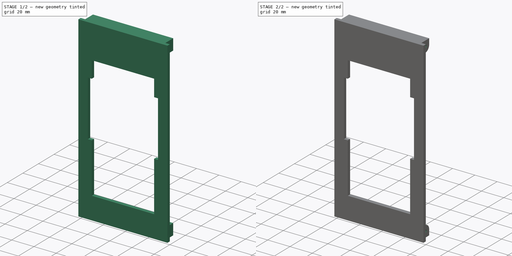
[diagram: build sequence overview — one tinted view per stage of 2, left to right]
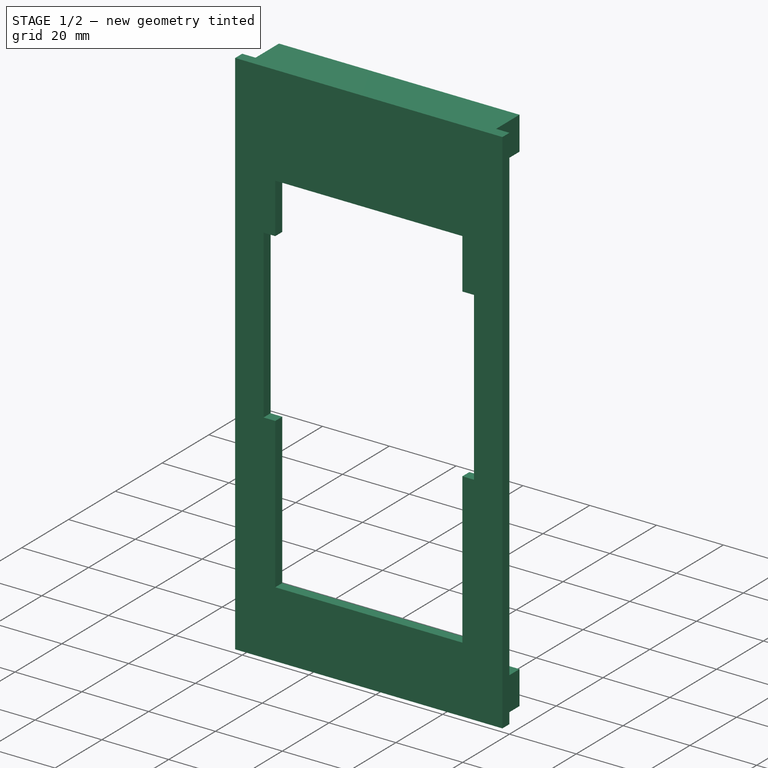
[diagram: stage 1 of 2 — iso view after this stage's code; geometry added in this stage tinted green]
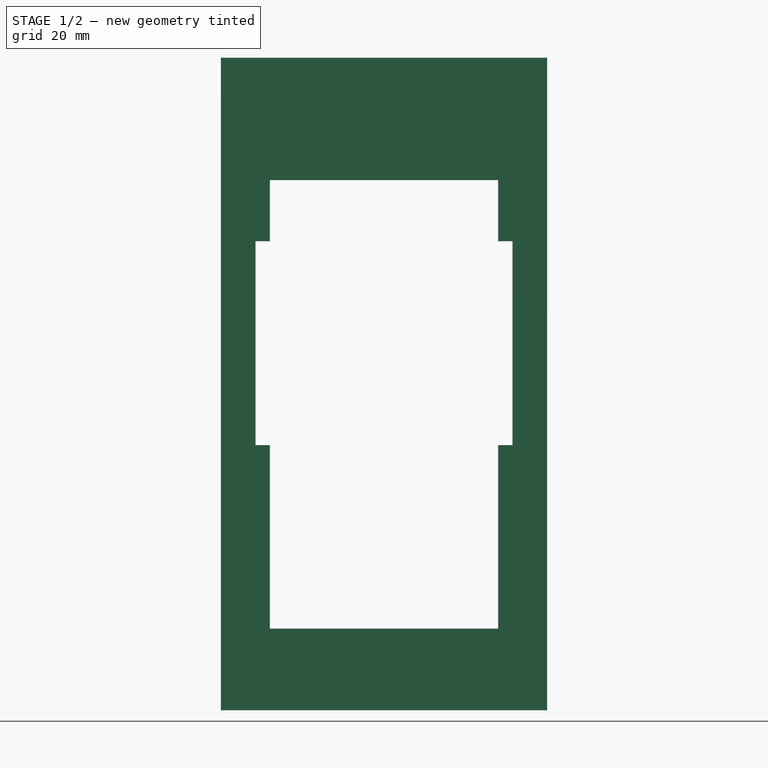
[diagram: stage 1 of 2 — front view after this stage's code; geometry added in this stage tinted green]
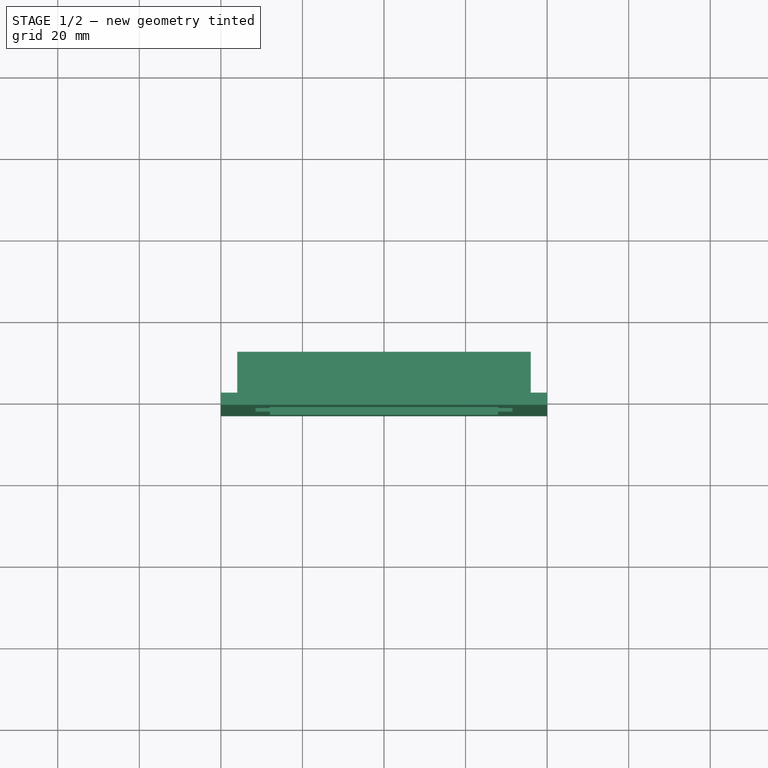
[diagram: stage 1 of 2 — top view after this stage's code; geometry added in this stage tinted green]
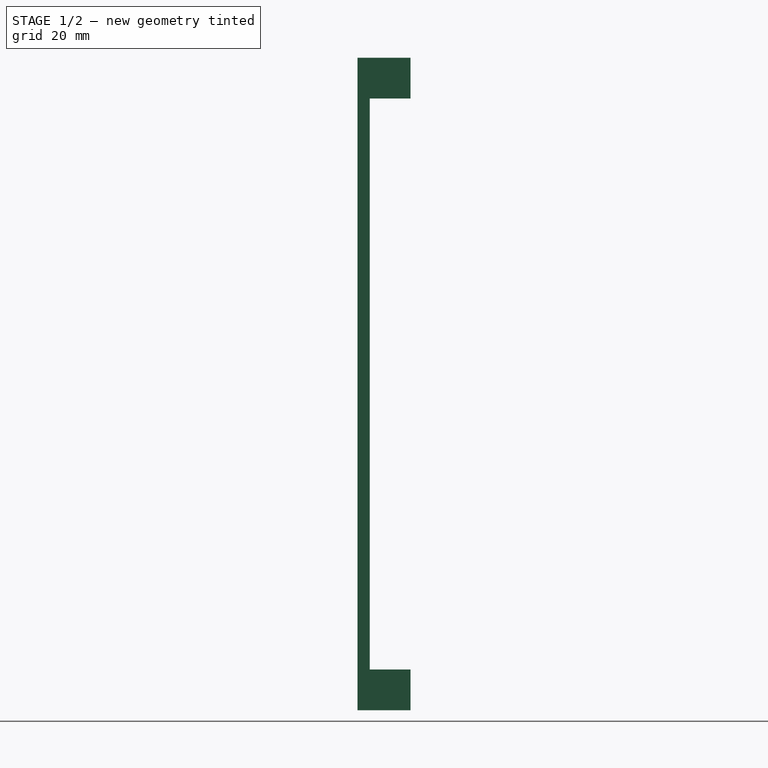
[diagram: stage 1 of 2 — right view after this stage's code; geometry added in this stage tinted green]
FCSTD DOCUMENT  (FreeCAD 1.0R39109 (Git))
Label: front
License: All rights reserved
LicenseURL: https://en.wikipedia.org/wiki/All_rights_reserved
objects: Sketcher::SketchObject×3, PartDesign::Pad×2, PartDesign::Pocket×1, PartDesign::Fillet×1, PartDesign::Body×1
note: 19 computed .brp shape members not serialized (recipe doc carries the construction recipe); baked Part::Feature solids carry a one-line shape summary decoded from their .brp

FEATURE [Sketcher::SketchObject] Sketch
  ArcFitTolerance = 1e-06
  AttachmentSupport = -> [XZ_Plane]
  FullyConstrained = true
  MakeInternals = false
  MapMode = 5
  Placement = pos=(0,0,0) rot=(1,0,0;1.5708rad)
  sketch-geometry (21):
    g0: GeomPoint [constr] X=0 Y=0 Z=0
    g1: LineSegment StartX=-40 StartY=-80 StartZ=0 EndX=40 EndY=-80 EndZ=0
    g2: LineSegment StartX=40 StartY=-80 StartZ=0 EndX=40 EndY=80 EndZ=0
    g3: LineSegment StartX=40 StartY=80 StartZ=0 EndX=-40 EndY=80 EndZ=0
    g4: LineSegment StartX=-40 StartY=80 StartZ=0 EndX=-40 EndY=-80 EndZ=0
    g5: GeomPoint [constr] X=0 Y=0 Z=0
    g6: LineSegment StartX=-31.5 StartY=-15 StartZ=0 EndX=-28 EndY=-15 EndZ=0
    g7: LineSegment StartX=31.5 StartY=-15 StartZ=0 EndX=31.5 EndY=35 EndZ=0
    g8: LineSegment StartX=31.5 StartY=35 StartZ=0 EndX=28 EndY=35 EndZ=0
    g9: LineSegment StartX=-31.5 StartY=35 StartZ=0 EndX=-31.5 EndY=-15 EndZ=0
    g10: GeomPoint [constr] X=0 Y=10 Z=0
    g11: LineSegment StartX=-28 StartY=-60 StartZ=0 EndX=28 EndY=-60 EndZ=0
    g12: LineSegment StartX=28 StartY=-60 StartZ=0 EndX=28 EndY=-15 EndZ=0
    g13: LineSegment StartX=28 StartY=50 StartZ=0 EndX=-28 EndY=50 EndZ=0
    g14: LineSegment StartX=-28 StartY=50 StartZ=0 EndX=-28 EndY=35 EndZ=0
    g15: GeomPoint [constr] X=0 Y=-5 Z=0
    g16: LineSegment StartX=-28 StartY=35 StartZ=0 EndX=-31.5 EndY=35 EndZ=0
    g17: LineSegment StartX=-28 StartY=-15 StartZ=0 EndX=-28 EndY=-60 EndZ=0
    g18: LineSegment StartX=28 StartY=35 StartZ=0 EndX=28 EndY=50 EndZ=0
    g19: LineSegment StartX=28 StartY=-15 StartZ=0 EndX=31.5 EndY=-15 EndZ=0
    g20: LineSegment [constr] StartX=0 StartY=10 StartZ=0 EndX=-40 EndY=10 EndZ=0
  constraints (56):
    c: Coincident(g0,g-1)
    c: Coincident(g1,g2)
    c: Coincident(g2,g3)
    c: Coincident(g3,g4)
    c: Coincident(g4,g1)
    c: Horizontal(g1)
    c: Horizontal(g3)
    c: Vertical(g2)
    c: Vertical(g4)
    c: Symmetric(g3,g1,g5)
    c: Coincident(g5,g0)
    c: Coincident(g19,g7)
    c: Coincident(g7,g8)
    c: Coincident(g16,g9)
    c: Coincident(g9,g6)
    c: Horizontal(g6)
    c: Horizontal(g8)
    c: Vertical(g7)
    c: Vertical(g9)
    c: Symmetric(g8,g6,g10)
    c: PointOnObject(g10,g-2)
    c: DistanceX(g3,g3) = 80
    c: DistanceY(g2,g2) = 160
    c: Coincident(g11,g12)
    c: Coincident(g18,g13)
    c: Coincident(g13,g14)
    c: Coincident(g17,g11)
    c: Horizontal(g11)
    c: Horizontal(g13)
    c: Vertical(g12)
    c: Vertical(g14)
    c: Symmetric(g13,g11,g15)
    c: PointOnObject(g15,g-2)
    c: Distance(g1,g11) = 20
    c: Distance(g8,g13) = 15
    c: Distance(g12,g7) = 3.5
    c: Distance(g6,g8) = 50
    c: PointOnObject(g8,g18)
    c: Coincident(g14,g16)
    c: PointOnObject(g12,g19)
    c: PointOnObject(g18,g8)
    c: Coincident(g6,g17)
    c: PointOnObject(g19,g12)
    c: Horizontal(g6,g12)
    c: Vertical(g18)
    c: Horizontal(g19)
    c: Vertical(g17)
    c: Horizontal(g9,g14)
    c: Horizontal(g14,g8)
    c: Vertical(g14,g6)
    c: Vertical(g8,g12)
    c: Coincident(g20,g10)
    c: PointOnObject(g20,g4)
    c: Horizontal(g20)
    c: Distance(g1,g20) = 90
    c: Distance(g7,g9) = 63
FEATURE [PartDesign::Pad] Pad
  Direction = (0,-1,2e-16)
  Length = 3
  Length2 = 10
  Placement = pos=(0,0,0) rot=(1,0,0;1.5708rad)
  Profile = -> Sketch
  ReferenceAxis = -> Sketch [N_Axis]
  Refine = true
  Suppressed = false
  Type = 0
FEATURE [Sketcher::SketchObject] Sketch001
  ArcFitTolerance = 1e-06
  AttachmentSupport = -> [Pad]
  ExternalGeometry = -> [Pad]
  FullyConstrained = true
  MakeInternals = false
  MapMode = 5
  Placement = pos=(0,-4e-16,0) rot=(-1,0,0;1.5708rad)
  sketch-geometry (10):
    g0: LineSegment StartX=-36 StartY=70 StartZ=0 EndX=36 EndY=70 EndZ=0
    g1: LineSegment StartX=36 StartY=70 StartZ=0 EndX=36 EndY=80 EndZ=0
    g2: LineSegment StartX=36 StartY=80 StartZ=0 EndX=-36 EndY=80 EndZ=0
    g3: LineSegment StartX=-36 StartY=80 StartZ=0 EndX=-36 EndY=70 EndZ=0
    g4: GeomPoint [constr] X=0 Y=75 Z=0
    g5: LineSegment StartX=-36 StartY=-80 StartZ=0 EndX=36 EndY=-80 EndZ=0
    g6: LineSegment StartX=36 StartY=-80 StartZ=0 EndX=36 EndY=-70 EndZ=0
    g7: LineSegment StartX=36 StartY=-70 StartZ=0 EndX=-36 EndY=-70 EndZ=0
    g8: LineSegment StartX=-36 StartY=-70 StartZ=0 EndX=-36 EndY=-80 EndZ=0
    g9: GeomPoint [constr] X=0 Y=-75 Z=0
  constraints (26):
    c: Coincident(g0,g1)
    c: Coincident(g1,g2)
    c: Coincident(g2,g3)
    c: Coincident(g3,g0)
    c: Horizontal(g0)
    c: Horizontal(g2)
    c: Vertical(g1)
    c: Vertical(g3)
    c: Symmetric(g2,g0,g4)
    c: PointOnObject(g4,g-2)
    c: Coincident(g5,g6)
    c: Coincident(g6,g7)
    c: Coincident(g7,g8)
    c: Coincident(g8,g5)
    c: Horizontal(g5)
    c: Horizontal(g7)
    c: Vertical(g6)
    c: Vertical(g8)
    c: Symmetric(g7,g5,g9)
    c: PointOnObject(g9,g-2)
    c: PointOnObject(g5,g-4)
    c: PointOnObject(g1,g-3)
    c: Distance(g-3,g3) = 4
    c: DistanceY(g3,g3) = 10
    c: DistanceY(g8,g8) = 10
    c: Distance(g-4,g8) = 4
FEATURE [PartDesign::Pad] Pad001
  BaseFeature = -> Pad
  Direction = (0,1,2e-16)
  Length = 10
  Length2 = 10
  Placement = pos=(0,0,0) rot=(1,0,0;1.5708rad)
  Profile = -> Sketch001
  ReferenceAxis = -> Sketch001 [N_Axis]
  Refine = true
  Suppressed = false
  Type = 0
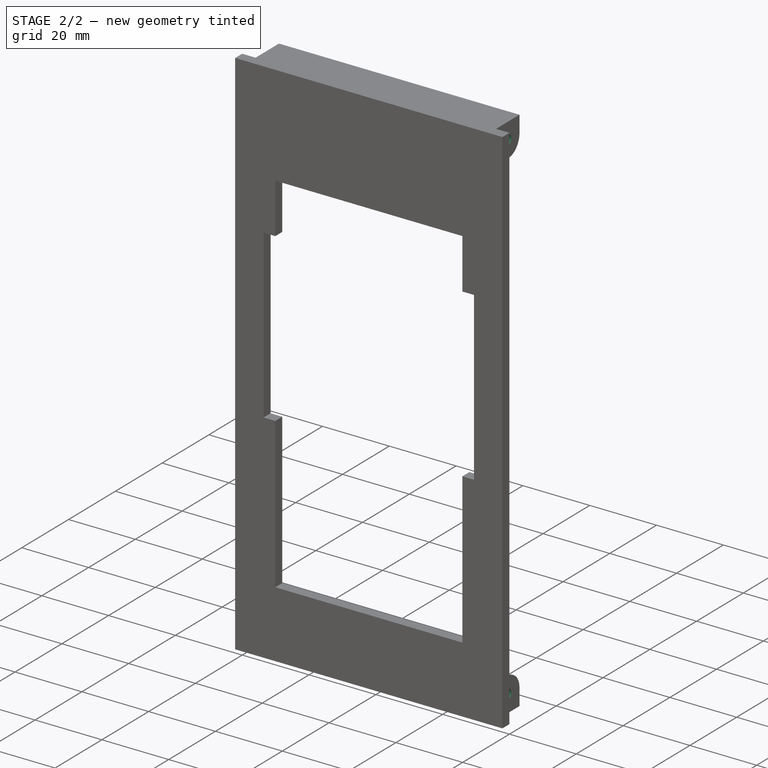
[diagram: stage 2 of 2 — iso view after this stage's code; geometry added in this stage tinted green]
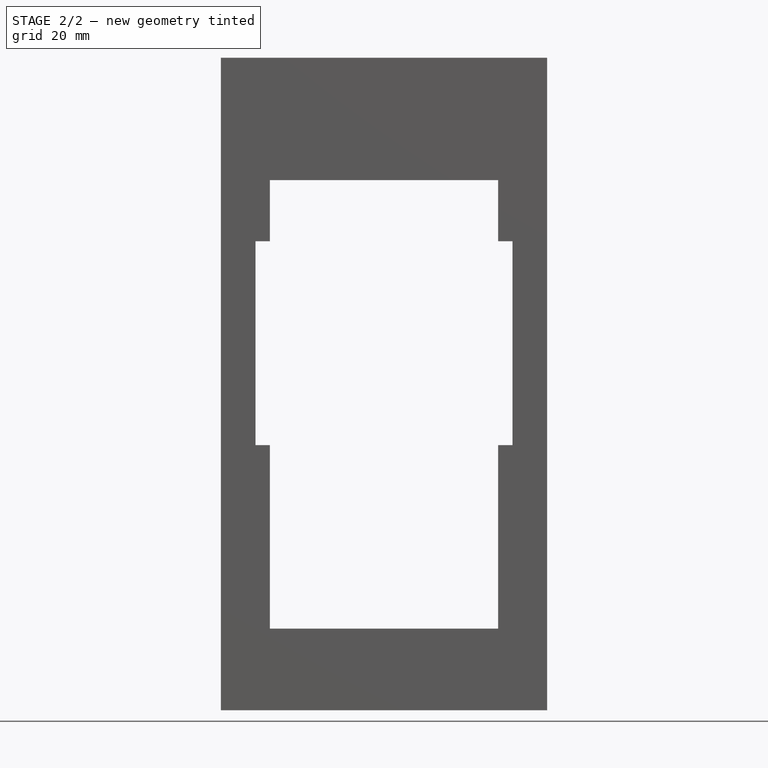
[diagram: stage 2 of 2 — front view after this stage's code; geometry added in this stage tinted green]
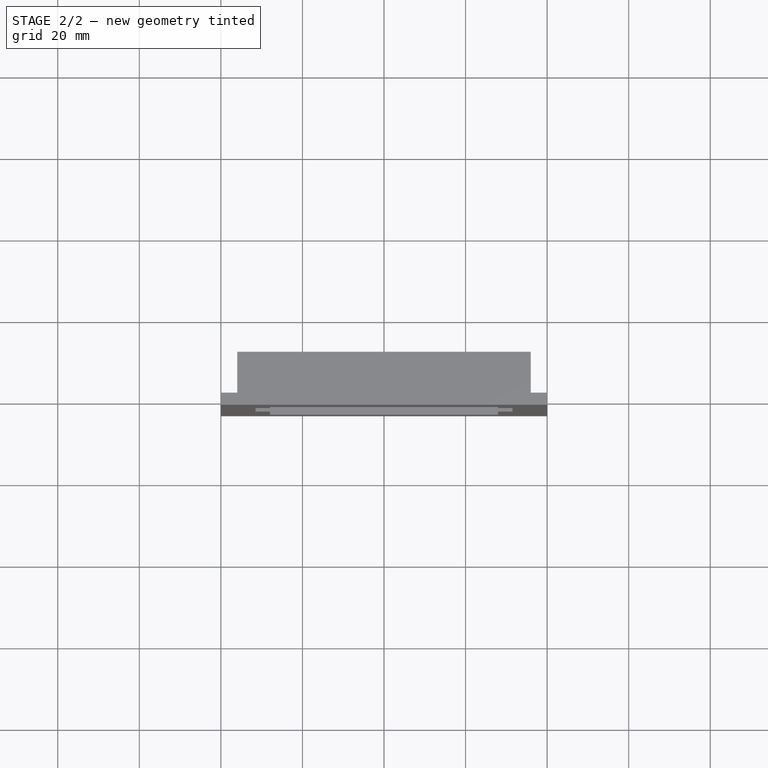
[diagram: stage 2 of 2 — top view after this stage's code; geometry added in this stage tinted green]
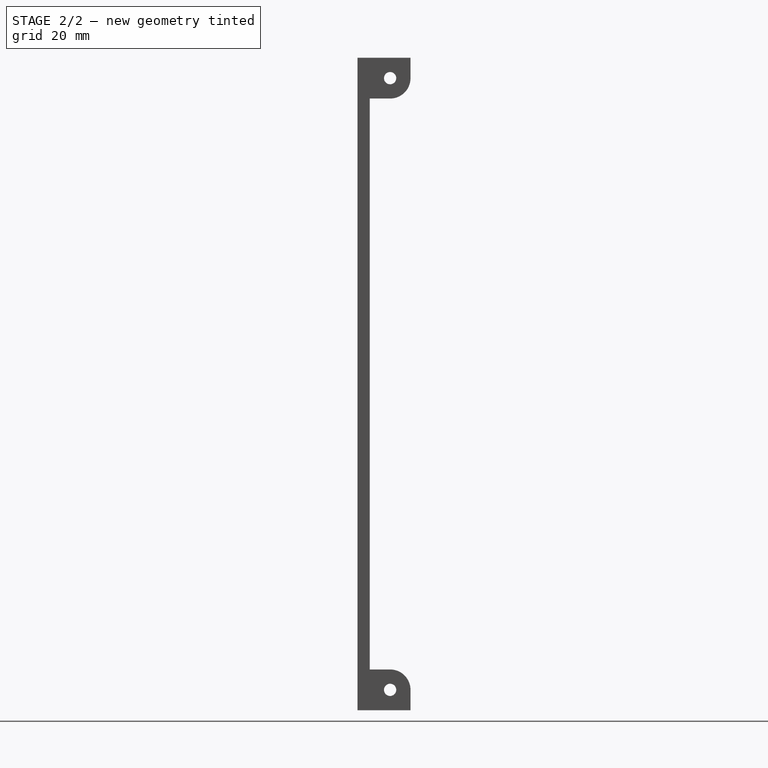
[diagram: stage 2 of 2 — right view after this stage's code; geometry added in this stage tinted green]
FEATURE [Sketcher::SketchObject] Sketch002
  ArcFitTolerance = 1e-06
  AttachmentSupport = -> [Pad001]
  ExternalGeometry = -> [Pad001]
  FullyConstrained = true
  MakeInternals = false
  MapMode = 5
  Placement = pos=(36,0,0) rot=(0.707107,0,0.707107;3.14159rad)
  sketch-geometry (2):
    g0: Circle CenterX=75 CenterY=-5 CenterZ=0 NormalX=0 NormalY=0 NormalZ=1 AngleXU=0 Radius=1.5
    g1: Circle CenterX=-75 CenterY=-5 CenterZ=0 NormalX=0 NormalY=0 NormalZ=1 AngleXU=0 Radius=1.5
  constraints (6):
    c: Diameter(g0) = 3
    c: Diameter(g1) = 3
    c: Distance(g1,g-3) = 5
    c: Distance(g0,g-4) = 5
    c: DistanceY(g-4,g0) = 5
    c: DistanceY(g-3,g1) = 5
FEATURE [PartDesign::Pocket] Pocket
  BaseFeature = -> Pad001
  Direction = (-1,0,2e-16)
  Length = 5
  Length2 = 5
  Midplane = true
  Placement = pos=(0,0,0) rot=(1,0,0;1.5708rad)
  Profile = -> Sketch002
  ReferenceAxis = -> Sketch002 [N_Axis]
  Refine = true
  Suppressed = false
  Type = 1
FEATURE [PartDesign::Fillet] Fillet
  Base = -> Pocket [Edge54,Edge61]
  BaseFeature = -> Pocket
  Placement = pos=(0,0,0) rot=(1,0,0;1.5708rad)
  Radius = 5
  Refine = true
  SupportTransform = false
  Suppressed = false
  UseAllEdges = false
FEATURE [PartDesign::Body] Body
  AllowCompound = false
  Group = -> [Sketch,Pad,Sketch001,Pad001,Sketch002,Pocket,Fillet]
  Origin = -> Origin
  Tip = -> Fillet
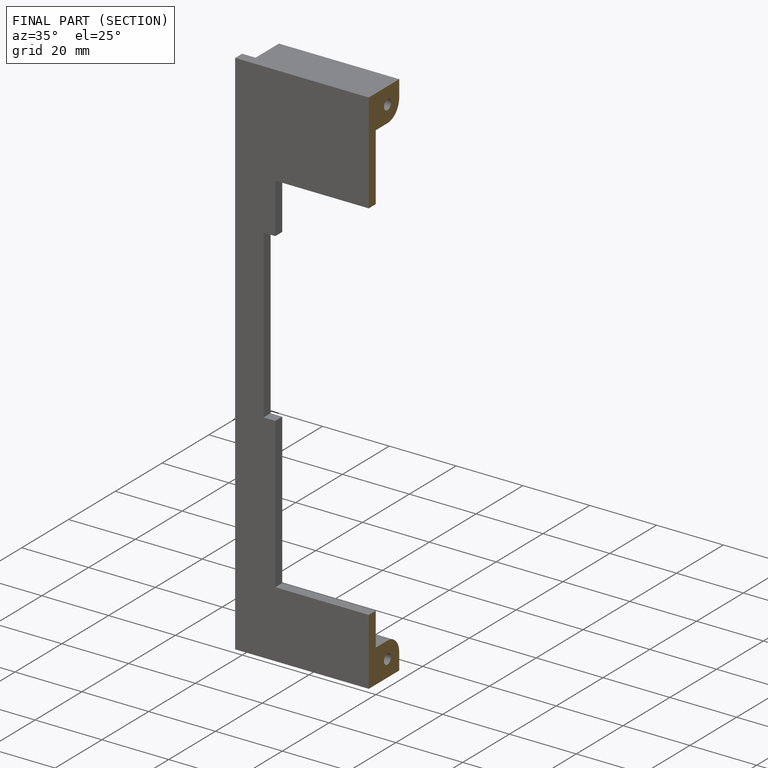
[diagram: finished part — half-section view (interior)]
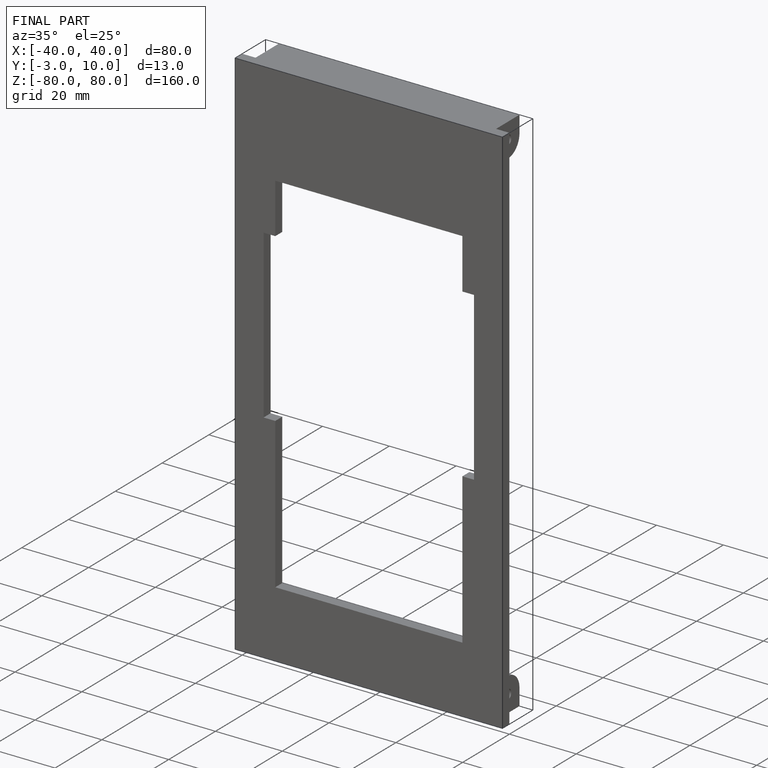
[diagram: finished part — iso view with bounding-box wireframe]
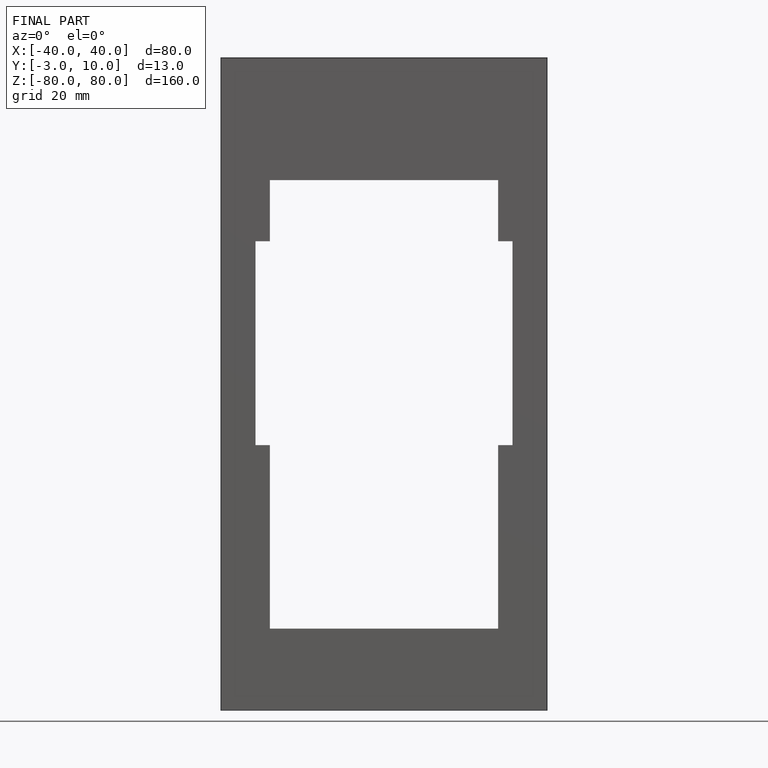
[diagram: finished part — front view with bounding-box wireframe]
